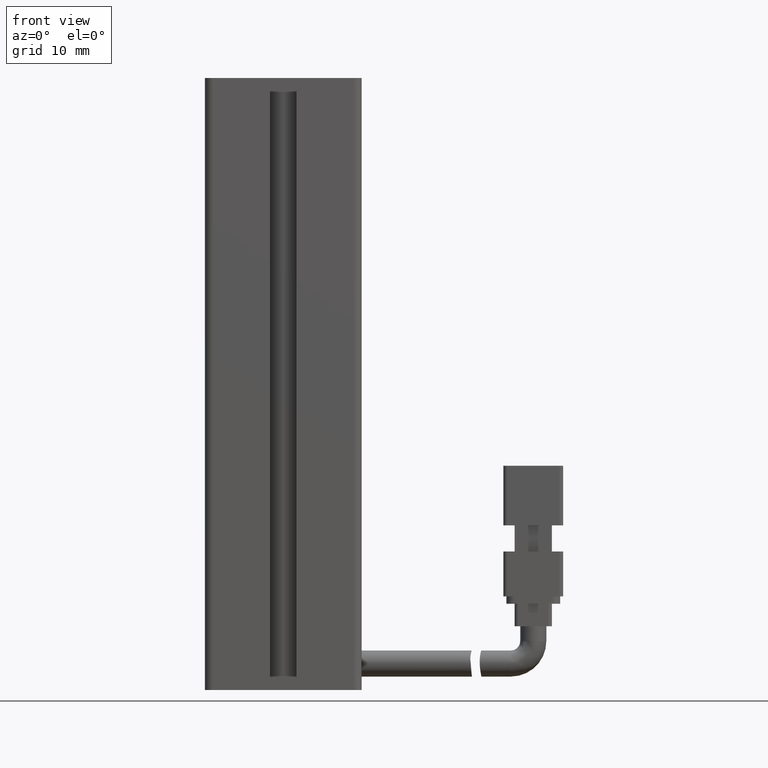
[diagram: clean part render]
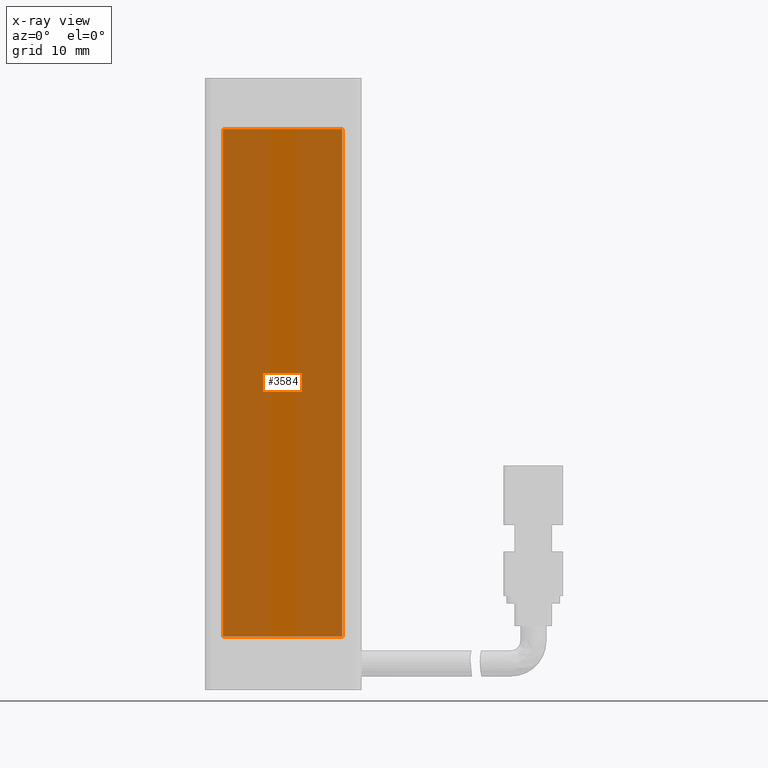
[diagram: x-ray — body ghosted, one internal face saturated and labeled with its STEP entity id]
A machine part, front view, then the same camera in x-ray: the body is ghosted and one INTERNAL B-rep face — a face not visible from any outside direction — is saturated and labeled: STEP entity #3584.
In plain terms, the highlighted planar face has unit normal (0, 1, -0).
Its self-contained STEP definition (entity closure, byte-faithful):
#486 = CARTESIAN_POINT ( 'NONE',  ( 48.82537974683540900, 23.49073232304836600, -80.84999999999998000 ) ) ;
#1837 = DIRECTION ( 'NONE',  ( -1.000000000000000000, 7.380418287155808400E-032, 0.0000000000000000000 ) ) ;
#2164 = VECTOR ( 'NONE', #28888, 1000.000000000000000 ) ;
#2420 = DIRECTION ( 'NONE',  ( 0.0000000000000000000, 0.0000000000000000000, 1.000000000000000000 ) ) ;
#2915 = VECTOR ( 'NONE', #28106, 1000.000000000000000 ) ;
#3584 = ADVANCED_FACE ( 'NONE', ( #13053 ), #13309, .F. ) ;
#5020 = CARTESIAN_POINT ( 'NONE',  ( 32.82537974683540900, 23.49073232304836600, -148.8499999999999900 ) ) ;
#6472 = LINE ( 'NONE', #8284, #2164 ) ;
#7554 = CARTESIAN_POINT ( 'NONE',  ( 48.82537974683540900, 23.49073232304836600, -114.8499999999999700 ) ) ;
#8284 = CARTESIAN_POINT ( 'NONE',  ( 40.82537974683540900, 23.49073232304836600, -80.84999999999998000 ) ) ;
#8378 = AXIS2_PLACEMENT_3D ( 'NONE', #25137, #17812, #1837 ) ;
#8690 = VERTEX_POINT ( 'NONE', #22727 ) ;
#8920 = EDGE_CURVE ( 'NONE', #21845, #20396, #27384, .T. ) ;
#9101 = EDGE_CURVE ( 'NONE', #20396, #22503, #14684, .T. ) ;
#9115 = CARTESIAN_POINT ( 'NONE',  ( 32.82537974683540900, 23.49073232304836600, -114.8499999999999700 ) ) ;
#9130 = ORIENTED_EDGE ( 'NONE', *, *, #10746, .F. ) ;
#9362 = ORIENTED_EDGE ( 'NONE', *, *, #8920, .F. ) ;
#9546 = CARTESIAN_POINT ( 'NONE',  ( 48.82537974683540900, 23.49073232304836600, -148.8499999999999900 ) ) ;
#10195 = CARTESIAN_POINT ( 'NONE',  ( 40.82537974683540900, 23.49073232304836600, -148.8499999999999900 ) ) ;
#10746 = EDGE_CURVE ( 'NONE', #22503, #8690, #16302, .T. ) ;
#11962 = VECTOR ( 'NONE', #2420, 1000.000000000000000 ) ;
#13053 = FACE_OUTER_BOUND ( 'NONE', #15761, .T. ) ;
#13309 = PLANE ( 'NONE',  #8378 ) ;
#14684 = LINE ( 'NONE', #10195, #20828 ) ;
#15761 = EDGE_LOOP ( 'NONE', ( #9130, #29165, #9362, #22470 ) ) ;
#16302 = LINE ( 'NONE', #9115, #11962 ) ;
#17812 = DIRECTION ( 'NONE',  ( 7.380418287155808400E-032, 1.000000000000000000, -0.0000000000000000000 ) ) ;
#20396 = VERTEX_POINT ( 'NONE', #9546 ) ;
#20828 = VECTOR ( 'NONE', #28739, 1000.000000000000000 ) ;
#21845 = VERTEX_POINT ( 'NONE', #486 ) ;
#22470 = ORIENTED_EDGE ( 'NONE', *, *, #27978, .F. ) ;
#22503 = VERTEX_POINT ( 'NONE', #5020 ) ;
#22727 = CARTESIAN_POINT ( 'NONE',  ( 32.82537974683540900, 23.49073232304836600, -80.84999999999998000 ) ) ;
#25137 = CARTESIAN_POINT ( 'NONE',  ( 40.82537974683540900, 23.49073232304836600, -114.8499999999999700 ) ) ;
#27384 = LINE ( 'NONE', #7554, #2915 ) ;
#27978 = EDGE_CURVE ( 'NONE', #8690, #21845, #6472, .T. ) ;
#28106 = DIRECTION ( 'NONE',  ( -0.0000000000000000000, -0.0000000000000000000, -1.000000000000000000 ) ) ;
#28739 = DIRECTION ( 'NONE',  ( -1.000000000000000000, 7.380418287155808400E-032, 0.0000000000000000000 ) ) ;
#28888 = DIRECTION ( 'NONE',  ( 1.000000000000000000, -7.380418287155808400E-032, -0.0000000000000000000 ) ) ;
#29165 = ORIENTED_EDGE ( 'NONE', *, *, #9101, .F. ) ;